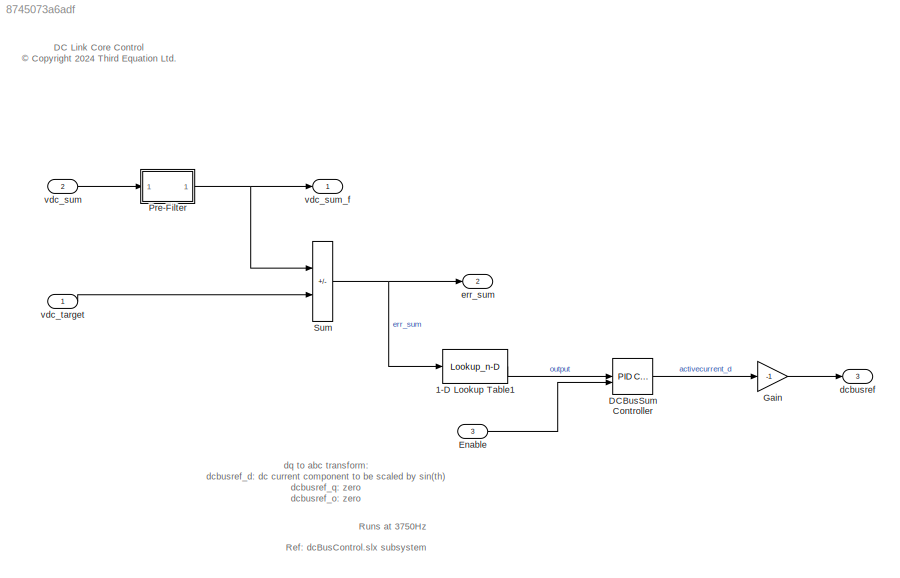
MODEL slx_8745073a6adf
KIND model
BLOCK [Lookup_n-D] 1-D Lookup Table1
  BreakpointsForDimension1 = [-15 -10 10 15]
  InputPortMap = u0
  InternalRulePriority = Speed
  NumberOfTableDimensions = 1
  RndMeth = Simplest
  Table = [-20 -10 10 20]
BLOCK [Reference] DCBusSum Controller  REF=slpidlib/PID Controller
  SourceBlock = slpidlib/PID Controller
  SourceType = PID 1dof
BLOCK [Inport] Enable
  OutDataTypeStr = boolean
  Port = 3
BLOCK [Gain] Gain
  Gain = -1
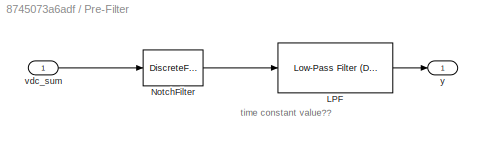
BLOCK [SubSystem] Pre-Filter
BLOCK [Reference] Pre-Filter/LPF  REF=eeGeneralControl/Low-Pass Filter
(Discrete or Continuous)
  SourceBlock = eeGeneralControl/Low-Pass Filter\n(Discrete or Continuous)
  SourceType = Low-Pass Filter (Discrete or Continuous)
BLOCK [DiscreteFilter] Pre-Filter/NotchFilter
  Denominator = dcBusCtrl.Sum.Den
  InputPortMap = u0
  Numerator = dcBusCtrl.Sum.Num
BLOCK [Inport] Pre-Filter/vdc_sum
BLOCK [Outport] Pre-Filter/y
BLOCK [Sum] Sum
  IconShape = rectangular
  Inputs = -+
BLOCK [Outport] dcbusref
  OutDataTypeStr = single
  Port = 3
BLOCK [Outport] err_sum
  OutDataTypeStr = single
  Port = 2
BLOCK [Inport] vdc_sum
  OutDataTypeStr = single
  Port = 2
BLOCK [Outport] vdc_sum_f
  OutDataTypeStr = single
BLOCK [Inport] vdc_target
  OutDataTypeStr = single
ANNOTATION (root): DC Link Core Control <copyright redacted>
ANNOTATION (root): Runs at 3750Hz
ANNOTATION (root): Ref: dcBusControl.slx subsystem
ANNOTATION (root): dq to abc transform: dcbusref_d: dc current component to be scaled by sin(th) dcbusref_q: zero dcbusref_o: zero
ANNOTATION Pre-Filter: time constant value??
LINE 1-D Lookup Table1:1 -> DCBusSum Controller:1
LINE DCBusSum Controller:1 -> Gain:1
LINE Enable:1 -> DCBusSum Controller:2
LINE Gain:1 -> dcbusref:1
LINE Pre-Filter/LPF:1 -> Pre-Filter/y:1
LINE Pre-Filter/NotchFilter:1 -> Pre-Filter/LPF:1
LINE Pre-Filter/vdc_sum:1 -> Pre-Filter/NotchFilter:1
NET Pre-Filter:1 -> Sum:1, vdc_sum_f:1
NET Sum:1 -> 1-D Lookup Table1:1, err_sum:1
LINE vdc_sum:1 -> Pre-Filter:1
LINE vdc_target:1 -> Sum:2
note: NET lines group one-source signal fan-out (src -> all destinations, sorted); 1:1 wires keep LINE
